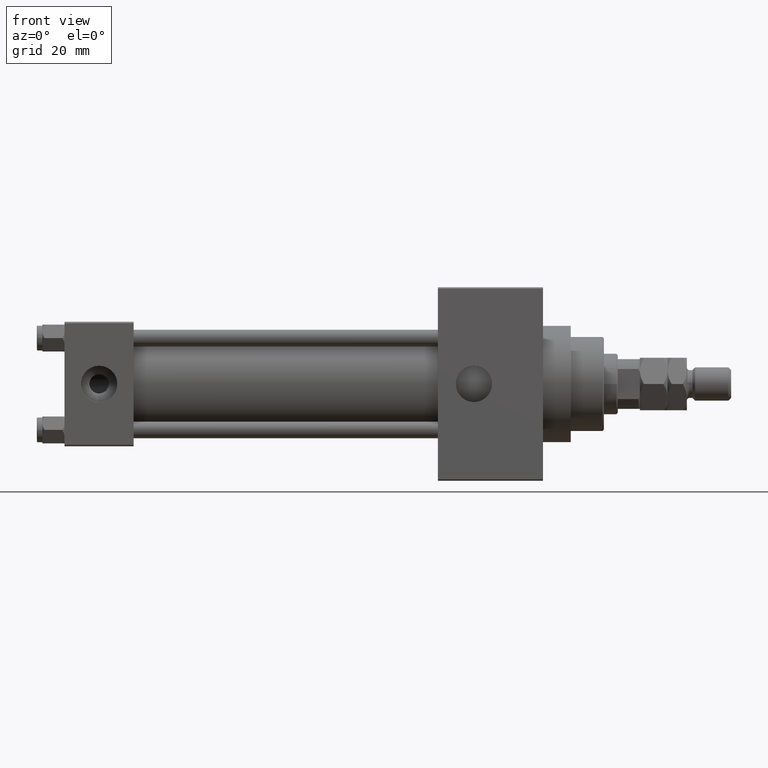
[diagram: clean part render]
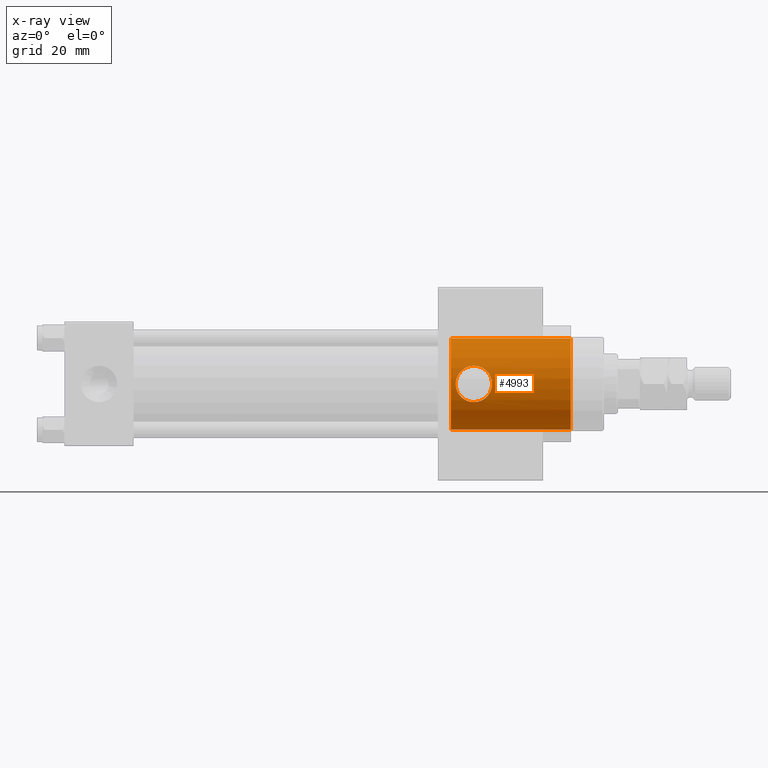
[diagram: x-ray — body ghosted, one internal face saturated and labeled with its STEP entity id]
A machine part, front view, then the same camera in x-ray: the body is ghosted and one INTERNAL B-rep face — a face not visible from any outside direction — is saturated and labeled: STEP entity #4993.
In plain terms, the highlighted cylindrical surface (partial cylindrical patch) has radius 16.5 mm, axis along (1, 0, 0).
Its self-contained STEP definition (entity closure, byte-faithful):
#208 = CARTESIAN_POINT ( 'NONE',  ( 141.4620471739781351, -16.48308870554038563, -0.8617218462485672914 ) ) ;
#421 = CIRCLE ( 'NONE', #19304, 16.50000000000000000 ) ;
#456 = CARTESIAN_POINT ( 'NONE',  ( 142.4163935120344036, -16.12816461199180296, -3.487910063402599015 ) ) ;
#1028 = CARTESIAN_POINT ( 'NONE',  ( 149.0817350575626676, -15.16832949578266643, 6.494148522642652743 ) ) ;
#1280 = CARTESIAN_POINT ( 'NONE',  ( 148.0000000000000284, -15.13121277360145456, -6.580000000000014282 ) ) ;
#1525 = CARTESIAN_POINT ( 'NONE',  ( 148.2164626310618871, -15.13121277360145811, 6.580000000000016946 ) ) ;
#1752 = EDGE_CURVE ( 'NONE', #16213, #47446, #24641, .T. ) ;
#1993 = VERTEX_POINT ( 'NONE', #46201 ) ;
#2006 = CARTESIAN_POINT ( 'NONE',  ( 152.5029775434219061, -15.78638122130811716, -4.802565914417463944 ) ) ;
#2287 = ORIENTED_EDGE ( 'NONE', *, *, #1752, .F. ) ;
#2402 = DIRECTION ( 'NONE',  ( 1.000000000000000000, 0.000000000000000000, 0.000000000000000000 ) ) ;
#2603 = ORIENTED_EDGE ( 'NONE', *, *, #34930, .T. ) ;
#2707 = CARTESIAN_POINT ( 'NONE',  ( 144.5110772590388137, -15.52728767156316181, 5.582932414048517700 ) ) ;
#3437 = CARTESIAN_POINT ( 'NONE',  ( 146.2756825394560565, -15.22330041739756545, -6.364725720179173152 ) ) ;
#4169 = CARTESIAN_POINT ( 'NONE',  ( 142.3046072488310756, -16.16731373912638148, -3.302327227358423656 ) ) ;
#4993 = ADVANCED_FACE ( 'NONE', ( #40203, #21503 ), #25434, .F. ) ;
#5469 = CARTESIAN_POINT ( 'NONE',  ( 153.2250317467632499, -16.00636203242128275, -4.022567752864862456 ) ) ;
#5711 = CARTESIAN_POINT ( 'NONE',  ( 151.4859657317063864, -15.52661439514565167, 5.584815751443769294 ) ) ;
#6406 = CARTESIAN_POINT ( 'NONE',  ( 146.2767826809346730, -15.22310035774496484, 6.365208763323286334 ) ) ;
#6496 = DIRECTION ( 'NONE',  ( 0.000000000000000000, 0.000000000000000000, -1.000000000000000000 ) ) ;
#7618 = CARTESIAN_POINT ( 'NONE',  ( 142.0084922471852167, -16.27408657079178056, -2.728432122203517274 ) ) ;
#7862 = CARTESIAN_POINT ( 'NONE',  ( 141.4198102875361087, -16.50007565502492923, -0.4306565832376140213 ) ) ;
#8676 = CARTESIAN_POINT ( 'NONE',  ( 154.1545588368718711, -16.33481951307493318, -2.337453149428515786 ) ) ;
#8739 = LINE ( 'NONE', #27199, #12478 ) ;
#8914 = CARTESIAN_POINT ( 'NONE',  ( 148.0000000000000284, -15.13121277360145278, 6.580000000000016058 ) ) ;
#9160 = CARTESIAN_POINT ( 'NONE',  ( 154.2396054961518530, -16.36649304724221210, 2.133746236587432676 ) ) ;
#9402 = CARTESIAN_POINT ( 'NONE',  ( 154.4936693983396481, -16.46571605509280545, 1.084186457750401011 ) ) ;
#9639 = CARTESIAN_POINT ( 'NONE',  ( 153.9069801896981744, -16.24261528062370985, -2.930445673899471526 ) ) ;
#10332 = CARTESIAN_POINT ( 'NONE',  ( 143.0438847694137792, -15.91956650262382666, 4.349411674909243963 ) ) ;
#10568 = CARTESIAN_POINT ( 'NONE',  ( 144.6940296043648289, -15.48704689900104725, 5.693260508788507757 ) ) ;
#10816 = CARTESIAN_POINT ( 'NONE',  ( 143.6557844884556516, -15.74167879188345687, -4.946709378541671143 ) ) ;
#11048 = CARTESIAN_POINT ( 'NONE',  ( 148.0000000000000284, -15.13121277360145456, -6.580000000000014282 ) ) ;
#11294 = CARTESIAN_POINT ( 'NONE',  ( 144.1570379981040162, -15.61065458758650237, -5.345392095018794087 ) ) ;
#12478 = VECTOR ( 'NONE', #35073, 1000.000000000000000 ) ;
#12604 = CARTESIAN_POINT ( 'NONE',  ( 152.3466734307965567, -15.74052401985886362, 4.958255686392939232 ) ) ;
#13094 = CARTESIAN_POINT ( 'NONE',  ( 149.7162102700572461, -15.22683439812354500, -6.355960835349375948 ) ) ;
#13335 = CARTESIAN_POINT ( 'NONE',  ( 149.7242185682246429, -15.22315359912302846, 6.365087069679066900 ) ) ;
#13529 = EDGE_LOOP ( 'NONE', ( #2603, #27556 ) ) ;
#14510 = CARTESIAN_POINT ( 'NONE',  ( 147.1225844535236433, -15.15075783367943174, -6.535529523814318509 ) ) ;
#14993 = CARTESIAN_POINT ( 'NONE',  ( 143.0437944101236951, -15.91962631954779717, -4.349073433710476166 ) ) ;
#15489 = CARTESIAN_POINT ( 'NONE',  ( 144.6864994234287281, -15.48596799979300620, -5.700684899122766325 ) ) ;
#16061 = CARTESIAN_POINT ( 'NONE',  ( 152.9531807260740095, -15.91870913537849219, -4.352308027976948601 ) ) ;
#16213 = VERTEX_POINT ( 'NONE', #29812 ) ;
#16307 = CARTESIAN_POINT ( 'NONE',  ( 154.5369143499477502, -16.48267789565536745, -0.8682687325834133052 ) ) ;
#16500 = EDGE_CURVE ( 'NONE', #41175, #30028, #43963, .T. ) ;
#16784 = CARTESIAN_POINT ( 'NONE',  ( 150.9325498729253923, -15.40779146666331023, -5.906079000195559203 ) ) ;
#17027 = CARTESIAN_POINT ( 'NONE',  ( 154.3548460819084767, -16.41140537151212797, -1.720283642777893807 ) ) ;
#17247 = CARTESIAN_POINT ( 'NONE',  ( 145.0728633227410285, -15.41062330090501398, 5.896992992228506481 ) ) ;
#17980 = EDGE_CURVE ( 'NONE', #16213, #29422, #8739, .T. ) ;
#18927 = CARTESIAN_POINT ( 'NONE',  ( 143.9861868278036070, -15.65371965244644414, -5.218375791872191805 ) ) ;
#19304 = AXIS2_PLACEMENT_3D ( 'NONE', #41159, #29597, #25670 ) ;
#20236 = CARTESIAN_POINT ( 'NONE',  ( 151.8422313747836085, -15.61045951566061163, -5.345983015487672851 ) ) ;
#20475 = CARTESIAN_POINT ( 'NONE',  ( 149.5064260814269801, -15.20455203064717686, -6.408878950244529804 ) ) ;
#20749 = ORIENTED_EDGE ( 'NONE', *, *, #17980, .T. ) ;
#20941 = CARTESIAN_POINT ( 'NONE',  ( 142.4184552035378886, -16.12745476206849204, 3.491136278857380759 ) ) ;
#21267 = CARTESIAN_POINT ( 'NONE',  ( 139.7400000000000375, 0.000000000000000000, 0.000000000000000000 ) ) ;
#21407 = CARTESIAN_POINT ( 'NONE',  ( 146.9160330086837405, -15.16850391705046341, 6.493739731009430471 ) ) ;
#21503 = FACE_OUTER_BOUND ( 'NONE', #23010, .T. ) ;
#21652 = CARTESIAN_POINT ( 'NONE',  ( 142.3080163297186118, -16.16611267912461614, 3.308181502302199206 ) ) ;
#22125 = CARTESIAN_POINT ( 'NONE',  ( 142.1006880801393208, -16.24027142867651818, -2.922495950178623847 ) ) ;
#22800 = ORIENTED_EDGE ( 'NONE', *, *, #39480, .T. ) ;
#22856 = CARTESIAN_POINT ( 'NONE',  ( 142.1039559431533235, -16.23908422823408060, 2.929062552190930369 ) ) ;
#23010 = EDGE_LOOP ( 'NONE', ( #2287, #20749, #22800, #42773 ) ) ;
#24169 = CARTESIAN_POINT ( 'NONE',  ( 150.9212802831997919, -15.40951052421081435, 5.899896746572040662 ) ) ;
#24409 = CARTESIAN_POINT ( 'NONE',  ( 148.4327185641294875, -15.13585987939391941, 6.569344683897123893 ) ) ;
#24628 = CARTESIAN_POINT ( 'NONE',  ( 147.7837320933032288, -15.13121277360145633, 6.580000000000016058 ) ) ;
#24641 = CIRCLE ( 'NONE', #41135, 16.50000000000000000 ) ;
#25342 = CARTESIAN_POINT ( 'NONE',  ( 142.7742737172256966, -16.00662470145048744, 4.021104841631734317 ) ) ;
#25434 = CYLINDRICAL_SURFACE ( 'NONE', #38080, 16.50000000000000000 ) ;
#25581 = CARTESIAN_POINT ( 'NONE',  ( 143.9807304781080006, -15.65215798738097952, 5.227153856479611171 ) ) ;
#25670 = DIRECTION ( 'NONE',  ( 0.000000000000000000, 0.000000000000000000, -1.000000000000000000 ) ) ;
#26500 = CARTESIAN_POINT ( 'NONE',  ( 139.7400000000000375, 0.000000000000000000, -16.50000000000000000 ) ) ;
#26831 = B_SPLINE_CURVE_WITH_KNOTS ( 'NONE', 3,
 ( #1280, #46104, #39178, #20475, #13094, #31310, #34759, #16784, #39412, #20236, #42637, #27849, #2006, #16061, #5469, #42885, #9639, #8676, #31790, #17027, #35253, #16307, #46353, #31549, #35492, #27378, #9402, #38690, #9160, #32037, #47071, #42402, #39652, #12604, #35726, #5711, #46583, #24169, #27608, #28100, #13335, #1028, #46829, #24409, #1525, #8914 ),
 .UNSPECIFIED., .F., .F.,
 ( 4, 2, 2, 2, 2, 2, 2, 2, 2, 2, 2, 2, 2, 2, 2, 2, 2, 2, 2, 2, 2, 2, 4 ),
 ( 0.000000000000000000, 0.001299347807372126578, 0.001949021711058230091, 0.002598695614744333821, 0.003898043422116464953, 0.004547717325802496692, 0.005197391229488527130, 0.006496739036860650456, 0.007796086844232772047, 0.008445760747918834577, 0.009095434651604894505, 0.01039478245897701436, 0.01104445636266307776, 0.01169413026634913769, 0.01299347807372125928, 0.01429282588109338087, 0.01559217368846550419, 0.01689152149583762405, 0.01754119539952368051, 0.01819086930320974044, 0.01949021711058193315, 0.02013989101426806941, 0.02078956491795420566 ),
 .UNSPECIFIED. ) ;
#27199 = CARTESIAN_POINT ( 'NONE',  ( 139.7400000000000375, 2.020667218593133100E-15, 16.50000000000000000 ) ) ;
#27271 = CARTESIAN_POINT ( 'NONE',  ( 148.0000000000000284, -15.13121277360145278, 6.580000000000016058 ) ) ;
#27378 = CARTESIAN_POINT ( 'NONE',  ( 154.5260053312742627, -16.47852996647750956, 0.8692522333500367626 ) ) ;
#27556 = ORIENTED_EDGE ( 'NONE', *, *, #16500, .T. ) ;
#27608 = CARTESIAN_POINT ( 'NONE',  ( 150.7277559956703215, -15.37388358644063935, 5.991788989370728125 ) ) ;
#27849 = CARTESIAN_POINT ( 'NONE',  ( 152.3455699946030109, -15.74205476764336709, -4.945509915598016448 ) ) ;
#28100 = CARTESIAN_POINT ( 'NONE',  ( 150.1351699272051121, -15.27614891417649368, 6.238637803414834870 ) ) ;
#29125 = CARTESIAN_POINT ( 'NONE',  ( 183.0000000000000284, 2.020667218593133100E-15, 16.50000000000000000 ) ) ;
#29422 = VERTEX_POINT ( 'NONE', #29125 ) ;
#29507 = CARTESIAN_POINT ( 'NONE',  ( 147.5606352501869196, -15.13121277360145633, -6.580000000000015170 ) ) ;
#29597 = DIRECTION ( 'NONE',  ( 1.000000000000000000, 0.000000000000000000, 0.000000000000000000 ) ) ;
#29756 = CARTESIAN_POINT ( 'NONE',  ( 141.6355686591317351, -16.41503546168713612, 1.725573555308425489 ) ) ;
#29812 = CARTESIAN_POINT ( 'NONE',  ( 139.7400000000000375, 2.020667218593133100E-15, 16.50000000000000000 ) ) ;
#29996 = CARTESIAN_POINT ( 'NONE',  ( 145.8613789780410741, -15.27651310399955165, -6.237825412003239478 ) ) ;
#30028 = VERTEX_POINT ( 'NONE', #32413 ) ;
#30237 = CARTESIAN_POINT ( 'NONE',  ( 141.6334388571907255, -16.41586083349134029, -1.718805082160337561 ) ) ;
#31310 = CARTESIAN_POINT ( 'NONE',  ( 150.1318010609375335, -15.27925665273813927, -6.228887546595366587 ) ) ;
#31549 = CARTESIAN_POINT ( 'NONE',  ( 154.5801109797046706, -16.50004425735604130, 0.2139202420057867982 ) ) ;
#31790 = CARTESIAN_POINT ( 'NONE',  ( 154.2277622722571664, -16.36261533078069164, -2.135046045547257521 ) ) ;
#32037 = CARTESIAN_POINT ( 'NONE',  ( 153.9044860275097051, -16.24168627842799495, 2.936425463161402405 ) ) ;
#32413 = CARTESIAN_POINT ( 'NONE',  ( 148.0000000000000284, -15.13121277360145456, -6.580000000000014282 ) ) ;
#32427 = DIRECTION ( 'NONE',  ( 0.000000000000000000, 0.000000000000000000, -1.000000000000000000 ) ) ;
#33214 = CARTESIAN_POINT ( 'NONE',  ( 143.4961202637415454, -15.78663247038169715, -4.801767457567236441 ) ) ;
#33851 = EDGE_CURVE ( 'NONE', #47446, #1993, #42682, .T. ) ;
#33944 = CARTESIAN_POINT ( 'NONE',  ( 142.0103247299445002, -16.27341039072888762, 2.732504077175528234 ) ) ;
#34759 = CARTESIAN_POINT ( 'NONE',  ( 150.3368436404141733, -15.30934634399819316, -6.154824634276170769 ) ) ;
#34930 = EDGE_CURVE ( 'NONE', #30028, #41175, #26831, .T. ) ;
#35073 = DIRECTION ( 'NONE',  ( 1.000000000000000000, -0.000000000000000000, -0.000000000000000000 ) ) ;
#35253 = CARTESIAN_POINT ( 'NONE',  ( 154.4087383794896766, -16.43240648733736009, -1.507201823210728708 ) ) ;
#35492 = CARTESIAN_POINT ( 'NONE',  ( 154.5693563963831423, -16.49574635277159373, 0.4334761427161618608 ) ) ;
#35726 = CARTESIAN_POINT ( 'NONE',  ( 152.0188320299910743, -15.65200948303234796, 5.227646253864151937 ) ) ;
#36425 = CARTESIAN_POINT ( 'NONE',  ( 145.2690828014978308, -15.37442948406652121, 5.990397416240471173 ) ) ;
#36521 = DIRECTION ( 'NONE',  ( 1.000000000000000000, -0.000000000000000000, -0.000000000000000000 ) ) ;
#36670 = CARTESIAN_POINT ( 'NONE',  ( 148.0000000000000284, -15.13121277360145278, 6.580000000000016058 ) ) ;
#37146 = CARTESIAN_POINT ( 'NONE',  ( 141.7607862772776173, -16.36636496367313853, -2.133785395076407632 ) ) ;
#38080 = AXIS2_PLACEMENT_3D ( 'NONE', #21267, #36521, #6496 ) ;
#38690 = CARTESIAN_POINT ( 'NONE',  ( 154.3658105569158749, -16.41557174924396278, 1.720484255628318193 ) ) ;
#39178 = CARTESIAN_POINT ( 'NONE',  ( 148.8711411545349108, -15.15039334692470341, -6.536368168917475074 ) ) ;
#39412 = CARTESIAN_POINT ( 'NONE',  ( 151.3085270693855193, -15.48484319519206309, -5.703819245747587807 ) ) ;
#39480 = EDGE_CURVE ( 'NONE', #29422, #1993, #421, .T. ) ;
#39629 = CARTESIAN_POINT ( 'NONE',  ( 143.6506155284152442, -15.74124088927798049, 4.956139103679623403 ) ) ;
#39652 = CARTESIAN_POINT ( 'NONE',  ( 152.9497087414562770, -15.91760481765424906, 4.356403647550576963 ) ) ;
#40108 = CARTESIAN_POINT ( 'NONE',  ( 147.1338894043951768, -15.15443439520090330, 6.526382333001802927 ) ) ;
#40203 = FACE_BOUND ( 'NONE', #13529, .T. ) ;
#40419 = CARTESIAN_POINT ( 'NONE',  ( 139.7400000000000375, 0.000000000000000000, -16.50000000000000000 ) ) ;
#41135 = AXIS2_PLACEMENT_3D ( 'NONE', #47453, #2402, #32427 ) ;
#41159 = CARTESIAN_POINT ( 'NONE',  ( 183.0000000000000284, 0.000000000000000000, 0.000000000000000000 ) ) ;
#41175 = VERTEX_POINT ( 'NONE', #27271 ) ;
#42402 = CARTESIAN_POINT ( 'NONE',  ( 153.2252096198712934, -16.00644752007863403, 4.021902003618694543 ) ) ;
#42637 = CARTESIAN_POINT ( 'NONE',  ( 152.0155953641319684, -15.65417886246120815, -5.216995378072931011 ) ) ;
#42682 = LINE ( 'NONE', #26500, #46767 ) ;
#42773 = ORIENTED_EDGE ( 'NONE', *, *, #33851, .F. ) ;
#42885 = CARTESIAN_POINT ( 'NONE',  ( 153.7049275730288400, -16.16938055003216945, -3.306933544473975584 ) ) ;
#43963 = B_SPLINE_CURVE_WITH_KNOTS ( 'NONE', 3,
 ( #36670, #24628, #44063, #40108, #21407, #6406, #44299, #36425, #17247, #10568, #2707, #25581, #39629, #10332, #25342, #20941, #21652, #22856, #33944, #45030, #29756, #45279, #48735, #7862, #208, #30237, #37146, #7618, #22125, #4169, #456, #44785, #14993, #33214, #10816, #18927, #11294, #15489, #48239, #29996, #3437, #14510, #29507, #11048 ),
 .UNSPECIFIED., .F., .F.,
 ( 4, 2, 2, 2, 2, 2, 2, 2, 2, 2, 2, 2, 2, 2, 2, 2, 2, 2, 2, 2, 2, 4 ),
 ( 0.02078956491795420566, 0.02143865439125720862, 0.02208774386456021505, 0.02338592281116630422, 0.02403501228446931065, 0.02468410175777231708, 0.02598228070437832993, 0.02728045965098434625, 0.02792954912428733186, 0.02857863859759031747, 0.02987681754419625746, 0.03117499649080219745, 0.03247317543740813744, 0.03377135438401408091, 0.03442044385731705264, 0.03506953333062001743, 0.03636771227722596089, 0.03701680175052896038, 0.03766589122383195987, 0.03896407017043788945, 0.04026224911704381904, 0.04156042806364975556 ),
 .UNSPECIFIED. ) ;
#44063 = CARTESIAN_POINT ( 'NONE',  ( 147.5672578691196577, -15.13585148006111147, 6.569364365636764624 ) ) ;
#44299 = CARTESIAN_POINT ( 'NONE',  ( 145.8653431066457813, -15.27601560990891549, 6.238999899499654056 ) ) ;
#44785 = CARTESIAN_POINT ( 'NONE',  ( 142.7739693338086511, -16.00670877726529895, -4.020959533168225519 ) ) ;
#45030 = CARTESIAN_POINT ( 'NONE',  ( 141.7615188125124348, -16.36607928442571946, 2.136189589747841122 ) ) ;
#45279 = CARTESIAN_POINT ( 'NONE',  ( 141.4644179552915091, -16.48214899759540586, 0.8773583784808463015 ) ) ;
#46104 = CARTESIAN_POINT ( 'NONE',  ( 148.4397603472147011, -15.13121277360145278, -6.580000000000012506 ) ) ;
#46201 = CARTESIAN_POINT ( 'NONE',  ( 183.0000000000000284, 0.000000000000000000, -16.50000000000000000 ) ) ;
#46353 = CARTESIAN_POINT ( 'NONE',  ( 154.5797754257114320, -16.49991044250579009, -0.4380009678969691289 ) ) ;
#46389 = DIRECTION ( 'NONE',  ( 1.000000000000000000, -0.000000000000000000, -0.000000000000000000 ) ) ;
#46583 = CARTESIAN_POINT ( 'NONE',  ( 151.3003347595243611, -15.48584339413507038, 5.696529696955717093 ) ) ;
#46767 = VECTOR ( 'NONE', #46389, 1000.000000000000000 ) ;
#46829 = CARTESIAN_POINT ( 'NONE',  ( 148.8648144702257810, -15.15436943593550367, 6.526532836328776455 ) ) ;
#47071 = CARTESIAN_POINT ( 'NONE',  ( 153.7009324042663536, -16.16799854402052361, 3.313288550714180936 ) ) ;
#47446 = VERTEX_POINT ( 'NONE', #40419 ) ;
#47453 = CARTESIAN_POINT ( 'NONE',  ( 139.7400000000000375, 0.000000000000000000, 0.000000000000000000 ) ) ;
#48239 = CARTESIAN_POINT ( 'NONE',  ( 145.0618240303593893, -15.40879718763534889, -5.903497922217332494 ) ) ;
#48735 = CARTESIAN_POINT ( 'NONE',  ( 141.4201909808367361, -16.49992383916338667, 0.4364344349844263560 ) ) ;